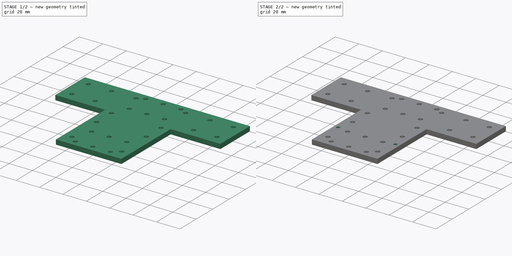
[diagram: build sequence overview — one tinted view per stage of 2, left to right]
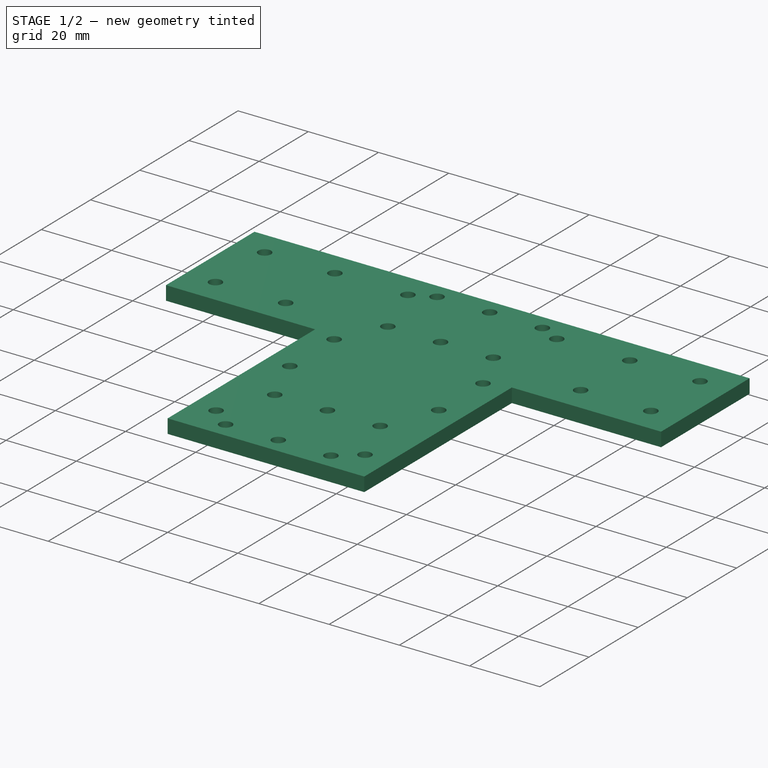
[diagram: stage 1 of 2 — iso view after this stage's code; geometry added in this stage tinted green]
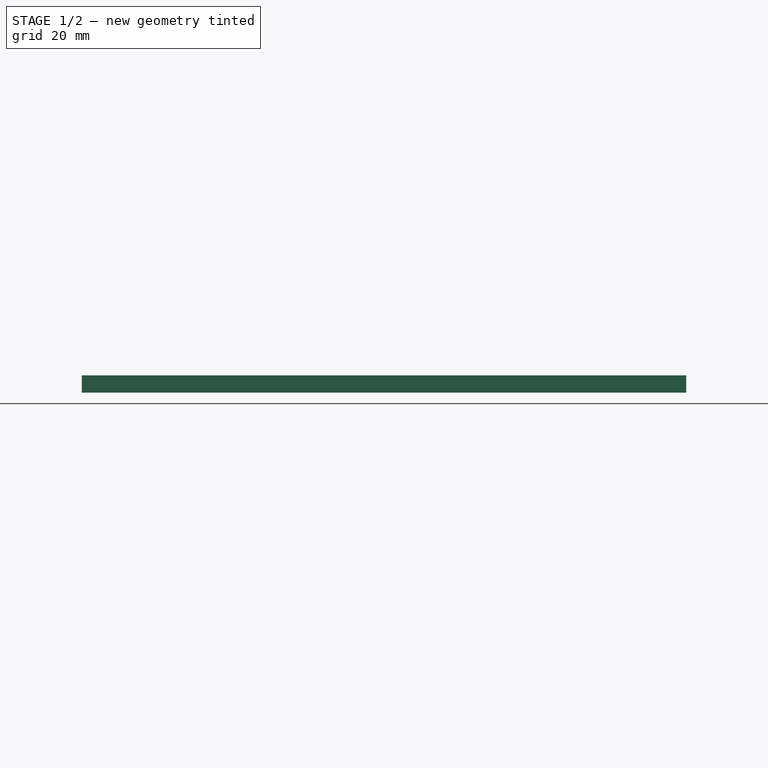
[diagram: stage 1 of 2 — front view after this stage's code; geometry added in this stage tinted green]
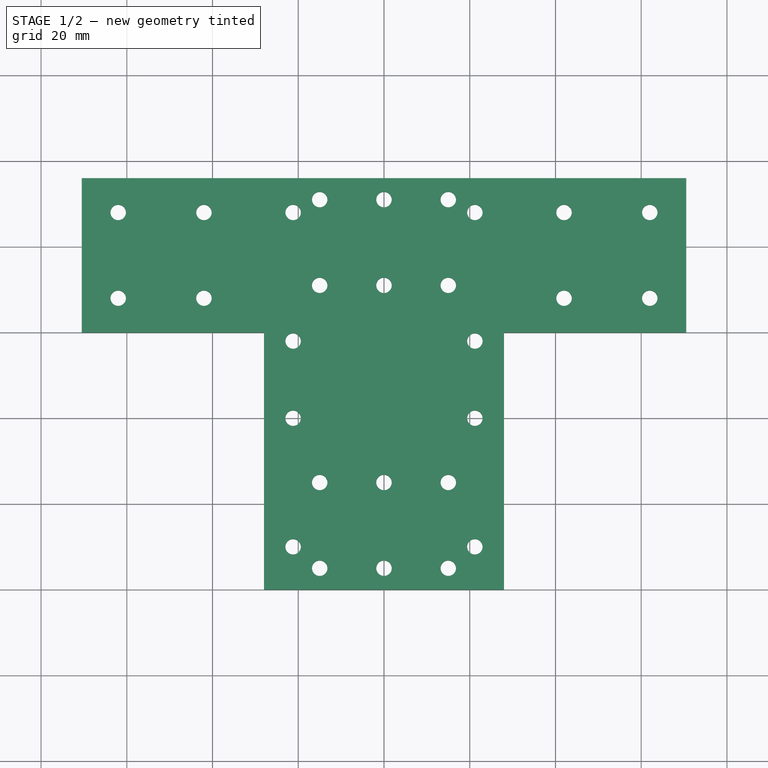
[diagram: stage 1 of 2 — top view after this stage's code; geometry added in this stage tinted green]
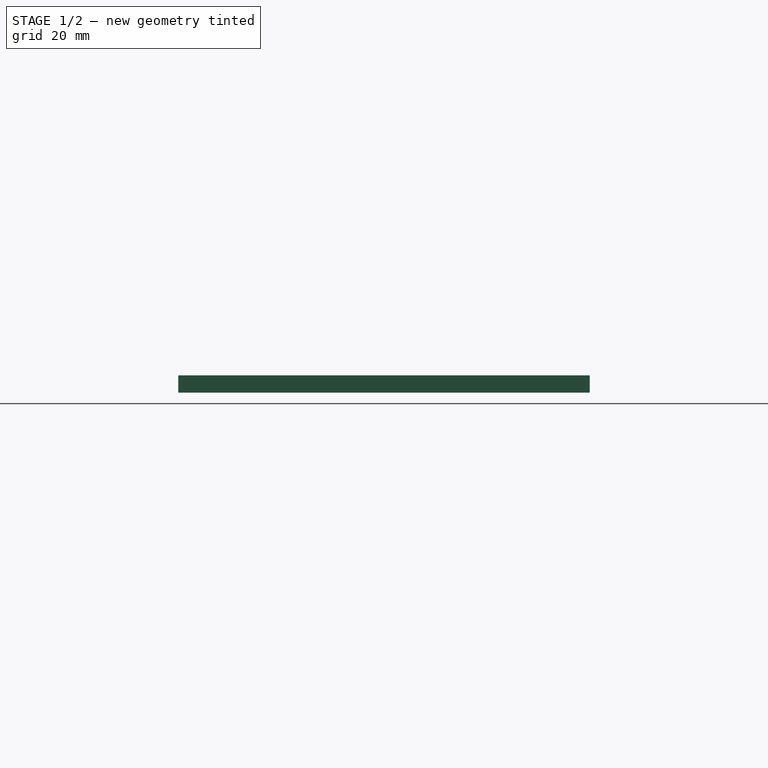
[diagram: stage 1 of 2 — right view after this stage's code; geometry added in this stage tinted green]
FCSTD DOCUMENT  (FreeCAD 0.21R33694 (Git))
Label: basePlate
License: All rights reserved
LicenseURL: http://en.wikipedia.org/wiki/All_rights_reserved
objects: Part::Feature×8, Sketcher::SketchObject×3, PartDesign::Pocket×2, App::Part×2, PartDesign::Pad×1, PartDesign::Body×1
note: 18 computed .brp shape members not serialized (recipe doc carries the construction recipe); baked Part::Feature solids carry a one-line shape summary decoded from their .brp

FEATURE [Sketcher::SketchObject] Sketch
  FullyConstrained = true
  MapMode = 5
  Support = -> [XY_Plane]
  sketch-geometry (8):
    g0: LineSegment StartX=-70.5 StartY=0 StartZ=0 EndX=-70.5 EndY=36 EndZ=0
    g1: LineSegment StartX=-70.5 StartY=36 StartZ=0 EndX=70.5 EndY=36 EndZ=0
    g2: LineSegment StartX=70.5 StartY=36 StartZ=0 EndX=70.5 EndY=0 EndZ=0
    g3: LineSegment StartX=70.5 StartY=0 StartZ=0 EndX=28 EndY=0 EndZ=0
    g4: LineSegment StartX=28 StartY=0 StartZ=0 EndX=28 EndY=-60 EndZ=0
    g5: LineSegment StartX=28 StartY=-60 StartZ=0 EndX=-28 EndY=-60 EndZ=0
    g6: LineSegment StartX=-28 StartY=-60 StartZ=0 EndX=-28 EndY=0 EndZ=0
    g7: LineSegment StartX=-28 StartY=0 StartZ=0 EndX=-70.5 EndY=0 EndZ=0
  constraints (24):
    c: PointOnObject(g0,g-1)
    c: Coincident(g1,g0)
    c: Coincident(g2,g1)
    c: Coincident(g3,g2)
    c: Horizontal(g3)
    c: Coincident(g4,g3)
    c: Vertical(g4)
    c: Coincident(g5,g4)
    c: Horizontal(g5)
    c: Coincident(g6,g5)
    c: Vertical(g6)
    c: Coincident(g7,g6)
    c: Coincident(g7,g0)
    c: Vertical(g0)
    c: Vertical(g2)
    c: Horizontal(g1)
    c: Horizontal(g7)
    c: DistanceX(g-1,g3) = 28
    c: DistanceX(g6,g-1) = 28
    c: DistanceY(g3,g-1) = 0
    c: DistanceX(g3,g2) = 42.5
    c: DistanceX(g0,g6) = 42.5
    c: DistanceY(g2,g1) = 36
    c: DistanceY(g4,g-1) = 60
FEATURE [PartDesign::Pad] Pad
  Direction = (0,0,1)
  Length = 4
  Length2 = 10
  Profile = -> Sketch
  ReferenceAxis = -> Sketch [N_Axis]
  Type = 0
FEATURE [Sketcher::SketchObject] Sketch001
  FullyConstrained = true
  MapMode = 5
  Placement = pos=(0,0,4) rot=(0,0,1;0rad)
  Support = -> [Pad]
  sketch-geometry (28):
    g0: Circle CenterX=-62 CenterY=28 CenterZ=0 NormalX=0 NormalY=0 NormalZ=1 AngleXU=0 Radius=1.8
    g1: Circle CenterX=-42 CenterY=28 CenterZ=0 NormalX=0 NormalY=0 NormalZ=1 AngleXU=0 Radius=1.8
    g2: Circle CenterX=-62 CenterY=8 CenterZ=0 NormalX=0 NormalY=0 NormalZ=1 AngleXU=0 Radius=1.8
    g3: Circle CenterX=-42 CenterY=8 CenterZ=0 NormalX=0 NormalY=0 NormalZ=1 AngleXU=0 Radius=1.8
    g4: Circle CenterX=42 CenterY=28 CenterZ=0 NormalX=0 NormalY=0 NormalZ=1 AngleXU=0 Radius=1.8
    g5: Circle CenterX=42 CenterY=8 CenterZ=0 NormalX=0 NormalY=0 NormalZ=1 AngleXU=0 Radius=1.8
    g6: Circle CenterX=62 CenterY=28 CenterZ=0 NormalX=0 NormalY=0 NormalZ=1 AngleXU=0 Radius=1.8
    g7: Circle CenterX=62 CenterY=8 CenterZ=0 NormalX=0 NormalY=0 NormalZ=1 AngleXU=0 Radius=1.8
    g8: Circle CenterX=-15 CenterY=-55 CenterZ=0 NormalX=0 NormalY=0 NormalZ=1 AngleXU=0 Radius=1.8
    g9: Circle CenterX=0 CenterY=-55 CenterZ=0 NormalX=0 NormalY=0 NormalZ=1 AngleXU=0 Radius=1.8
    g10: Circle CenterX=15 CenterY=-55 CenterZ=0 NormalX=0 NormalY=0 NormalZ=1 AngleXU=0 Radius=1.8
    g11: Circle CenterX=-15 CenterY=-35 CenterZ=0 NormalX=0 NormalY=0 NormalZ=1 AngleXU=0 Radius=1.8
    g12: Circle CenterX=0 CenterY=-35 CenterZ=0 NormalX=0 NormalY=0 NormalZ=1 AngleXU=0 Radius=1.8
    g13: Circle CenterX=15 CenterY=-35 CenterZ=0 NormalX=0 NormalY=0 NormalZ=1 AngleXU=0 Radius=1.8
    g14: Circle CenterX=21.2 CenterY=28 CenterZ=0 NormalX=0 NormalY=0 NormalZ=1 AngleXU=0 Radius=1.8
    g15: Circle CenterX=-21.2 CenterY=28 CenterZ=0 NormalX=0 NormalY=0 NormalZ=1 AngleXU=0 Radius=1.8
    g16: Circle CenterX=-21.2 CenterY=-20 CenterZ=0 NormalX=0 NormalY=0 NormalZ=1 AngleXU=0 Radius=1.8
    g17: Circle CenterX=21.2 CenterY=-20 CenterZ=0 NormalX=0 NormalY=0 NormalZ=1 AngleXU=0 Radius=1.8
    g18: Circle CenterX=-15 CenterY=31 CenterZ=0 NormalX=0 NormalY=0 NormalZ=1 AngleXU=0 Radius=1.8
    g19: Circle CenterX=0 CenterY=31 CenterZ=0 NormalX=0 NormalY=0 NormalZ=1 AngleXU=0 Radius=1.8
    g20: Circle CenterX=15 CenterY=31 CenterZ=0 NormalX=0 NormalY=0 NormalZ=1 AngleXU=0 Radius=1.8
    g21: Circle CenterX=0 CenterY=11 CenterZ=0 NormalX=0 NormalY=0 NormalZ=1 AngleXU=0 Radius=1.8
    g22: Circle CenterX=15 CenterY=11 CenterZ=0 NormalX=0 NormalY=0 NormalZ=1 AngleXU=0 Radius=1.8
    g23: Circle CenterX=-15 CenterY=11 CenterZ=0 NormalX=0 NormalY=0 NormalZ=1 AngleXU=0 Radius=1.8
    g24: Circle CenterX=21.2 CenterY=-2 CenterZ=0 NormalX=0 NormalY=0 NormalZ=1 AngleXU=0 Radius=1.8
    g25: Circle CenterX=-21.2 CenterY=-2 CenterZ=0 NormalX=0 NormalY=0 NormalZ=1 AngleXU=0 Radius=1.8
    g26: Circle CenterX=-21.2 CenterY=-50 CenterZ=0 NormalX=0 NormalY=0 NormalZ=1 AngleXU=0 Radius=1.8
    g27: Circle CenterX=21.2 CenterY=-50 CenterZ=0 NormalX=0 NormalY=0 NormalZ=1 AngleXU=0 Radius=1.8
  constraints (84):
    c: Radius(g0) = 1.8
    c: Radius(g1) = 1.8
    c: Radius(g2) = 1.8
    c: Radius(g3) = 1.8
    c: Radius(g4) = 1.8
    c: Radius(g5) = 1.8
    c: Radius(g7) = 1.8
    c: Radius(g6) = 1.8
    c: Radius(g11) = 1.8
    c: Radius(g12) = 1.8
    c: Radius(g13) = 1.8
    c: Radius(g8) = 1.8
    c: Radius(g9) = 1.8
    c: Radius(g10) = 1.8
    c: DistanceY(g0,g1) = 0
    c: DistanceY(g4,g6) = 0
    c: DistanceY(g7,g5) = 0
    c: DistanceY(g2,g3) = 0
    c: DistanceY(g11,g12) = 0
    c: DistanceY(g12,g13) = 0
    c: DistanceY(g8,g9) = 0
    c: DistanceY(g9,g10) = 0
    c: DistanceX(g10,g13) = 0
    c: DistanceX(g5,g4) = 0
    c: DistanceX(g7,g6) = 0
    c: DistanceX(g12,g9) = 0
    c: DistanceX(g8,g11) = 0
    c: DistanceX(g1,g3) = 0
    c: DistanceX(g0,g2) = 0
    c: DistanceX(g0,g1) = 20
    c: DistanceX(g4,g6) = 20
    c: DistanceY(g2,g0) = 20
    c: DistanceY(g12,g-1) = 35
    c: DistanceY(g9,g12) = 20
    c: DistanceX(g-1,g13) = 15
    c: DistanceX(g11,g-1) = 15
    c: DistanceX(g12,g-1) = 0
    c: DistanceX(g-1,g5) = 42
    c: DistanceX(g3,g-1) = 42
    c: DistanceY(g-1,g3) = 8
    c: DistanceY(g-1,g5) = 8
    c: DistanceY(g1,g4) = 0
    c: Radius(g15) = 1.8
    c: Radius(g16) = 1.8
    c: Radius(g17) = 1.8
    c: DistanceX(g15,g16) = 0
    c: DistanceX(g17,g14) = 0
    c: DistanceY(g14,g15) = 0
    c: DistanceY(g16,g17) = 0
    c: Radius(g14) = 1.8
    c: DistanceX(g-1,g17) = 21.2
    c: DistanceX(g16,g-1) = 21.2
    c: DistanceY(g-1,g14) = 28
    c: PointOnObject(g19,g-2)
    c: PointOnObject(g21,g-2)
    c: DistanceX(g20,g22) = 0
    c: DistanceX(g23,g18) = 0
    c: Radius(g20) = 1.8
    c: Radius(g22) = 1.8
    c: Radius(g21) = 1.8
    c: Radius(g19) = 1.8
    c: Radius(g18) = 1.8
    c: Radius(g23) = 1.8
    c: DistanceY(g19,g20) = 0
    c: DistanceY(g18,g19) = 0
    c: DistanceY(g21,g22) = 0
    c: DistanceY(g23,g21) = 0
    c: DistanceX(g19,g20) = 15
    c: DistanceX(g18,g19) = 15
    c: DistanceY(g21,g19) = 20
    c: DistanceY(g-1,g19) = 31
    c: DistanceY(g16,g15) = 48
    c: Radius(g24) = 1.8
    c: Radius(g25) = 1.8
    c: Radius(g26) = 1.8
    c: Radius(g27) = 1.8
    c: DistanceX(g24,g17) = 0
    c: DistanceX(g27,g24) = 0
    c: DistanceX(g26,g25) = 0
    c: DistanceX(g25,g16) = 0
    c: DistanceY(g25,g24) = 0
    c: DistanceY(g26,g27) = 0
    c: DistanceY(g26,g25) = 48
    c: DistanceY(g26,g-1) = 50
FEATURE [PartDesign::Pocket] Pocket
  BaseFeature = -> Pad
  Direction = (0,0,-1)
  Length = 5
  Length2 = 5
  Profile = -> Sketch001
  ReferenceAxis = -> Sketch001 [N_Axis]
  Type = 0
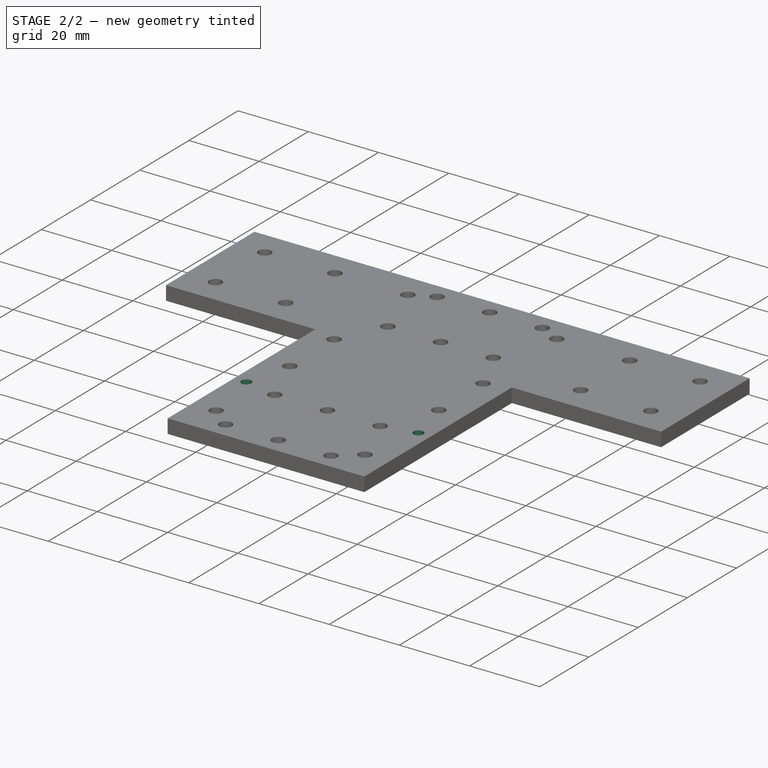
[diagram: stage 2 of 2 — iso view after this stage's code; geometry added in this stage tinted green]
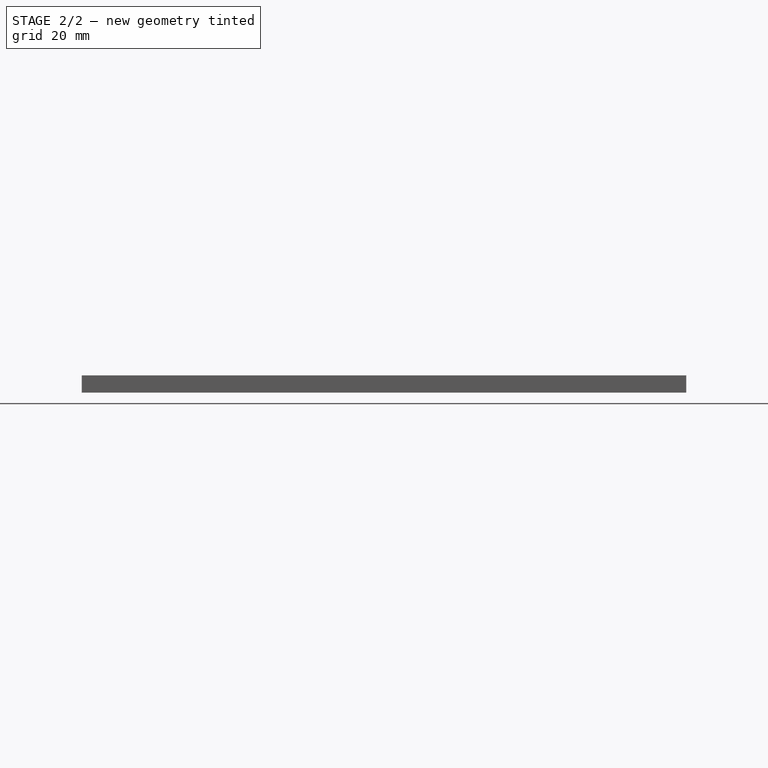
[diagram: stage 2 of 2 — front view after this stage's code; geometry added in this stage tinted green]
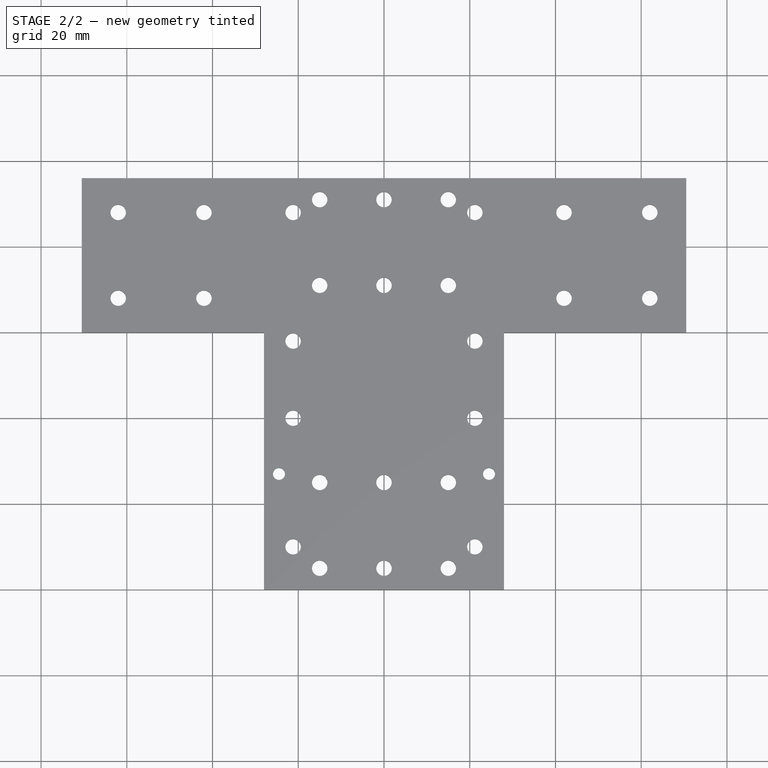
[diagram: stage 2 of 2 — top view after this stage's code; geometry added in this stage tinted green]
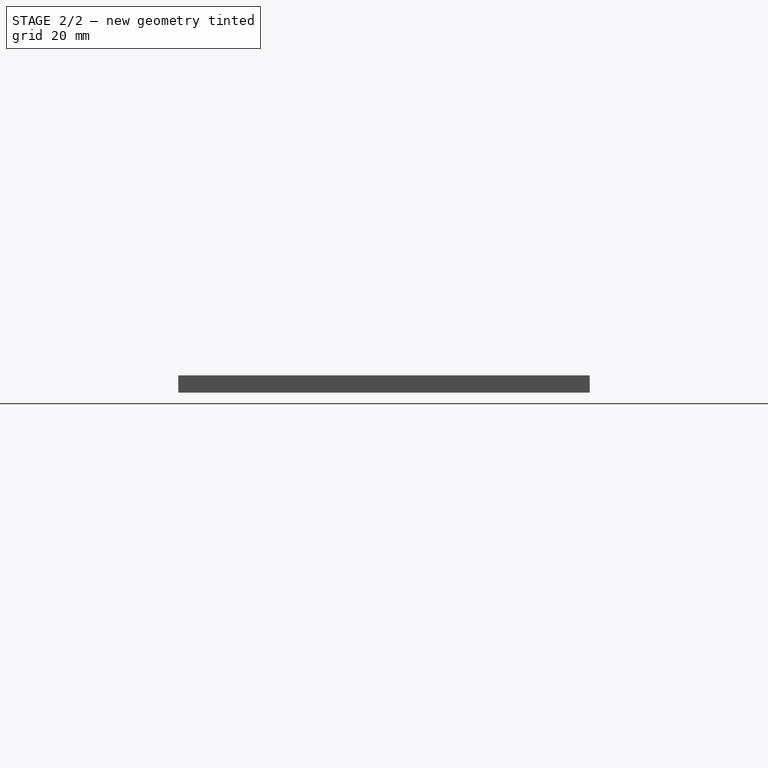
[diagram: stage 2 of 2 — right view after this stage's code; geometry added in this stage tinted green]
FEATURE [Part::Feature] Part__Feature  label="JST-B4B-EH-A.PRT.1"
  Placement = pos=(169.49,68.4835,-5.01893) rot=(0.57735,-0.57735,-0.57735;2.0944rad)
  shape: bbox 3.8 x 12.5 x 9.2 mm, 68 faces (baked)
FEATURE [Part::Feature] Part__Feature001  label="JST-B4B-EH-A.PRT.002"
  Placement = pos=(175.49,68.4835,-5.01893) rot=(0.57735,-0.57735,-0.57735;2.0944rad)
  shape: bbox 3.8 x 12.5 x 9.2 mm, 68 faces (baked)
FEATURE [Part::Feature] Part__Feature002  label="JST-B3B-EH-A.PRT.1"
  Placement = pos=(169.49,80.4335,-5.01893) rot=(0.57735,-0.57735,-0.57735;2.0944rad)
  shape: bbox 3.8 x 10 x 9.2 mm, 58 faces (baked)
FEATURE [Part::Feature] Part__Feature003  label="JST-B3B-EH-A.PRT.002"
  Placement = pos=(175.49,80.4335,-5.01893) rot=(0.57735,-0.57735,-0.57735;2.0944rad)
  shape: bbox 3.8 x 10 x 9.2 mm, 58 faces (baked)
FEATURE [Part::Feature] Part__Feature004  label="JST-B4B-EH-A.PRT.003"
  Placement = pos=(181.39,68.4835,-5.01893) rot=(0.57735,-0.57735,-0.57735;2.0944rad)
  shape: bbox 3.8 x 12.5 x 9.2 mm, 68 faces (baked)
FEATURE [Part::Feature] Part__Feature005  label="Board"
  shape: bbox 62.03 x 48 x 18.87 mm, 83 faces (baked)
FEATURE [Part::Feature] Part__Feature006  label="JST-B3B-EH-A.PRT.003"
  Placement = pos=(181.39,80.4335,-5.01893) rot=(0.57735,-0.57735,-0.57735;2.0944rad)
  shape: bbox 3.8 x 10 x 9.2 mm, 58 faces (baked)
FEATURE [Part::Feature] Part__Feature007  label="39281023.prt"
  Placement = pos=(-0.4,0,0) rot=(0,0,1;0rad)
  shape: bbox 6.2 x 16.3 x 11 mm, 77 faces (baked)
FEATURE [App::Part] _9281023_stp  label="39281023.stp"
  Group = -> [Part__Feature007]
  Origin = -> Origin001
  Placement = pos=(181.1,102.95,-5.21893) rot=(1,0,0;1.5708rad)
FEATURE [App::Part] ROBOTIS_U2D2_Power_Hub_Board
  Group = -> [Part__Feature,Part__Feature001,Part__Feature002,Part__Feature003,Part__Feature004,Part__Feature005,Part__Feature006,_9281023_stp]
  Origin = -> Origin002
  Placement = pos=(-85.5,186.75,18.5) rot=(0,0,1;4.71239rad)
FEATURE [Sketcher::SketchObject] Sketch002
  FullyConstrained = true
  MapMode = 5
  Placement = pos=(0,0,4) rot=(0,0,1;0rad)
  Support = -> [Pocket]
  sketch-geometry (2):
    g0: Circle CenterX=-24.5 CenterY=-33 CenterZ=0 NormalX=0 NormalY=0 NormalZ=1 AngleXU=0 Radius=1.4
    g1: Circle CenterX=24.5 CenterY=-33 CenterZ=0 NormalX=0 NormalY=0 NormalZ=1 AngleXU=0 Radius=1.4
  constraints (6):
    c: Radius(g0) = 1.4
    c: Radius(g1) = 1.4
    c: DistanceY(g0,g1) = 0
    c: DistanceY(g0,g-1) = 33
    c: DistanceX(g0,g-1) = 24.5
    c: DistanceX(g-1,g1) = 24.5
FEATURE [PartDesign::Pocket] Pocket001
  BaseFeature = -> Pocket
  Direction = (0,0,-1)
  Length = 5
  Length2 = 5
  Profile = -> Sketch002
  ReferenceAxis = -> Sketch002 [N_Axis]
  Type = 0
FEATURE [PartDesign::Body] Body
  Group = -> [Sketch,Pad,Sketch001,Pocket,Sketch002,Pocket001]
  Origin = -> Origin
  Tip = -> Pocket001
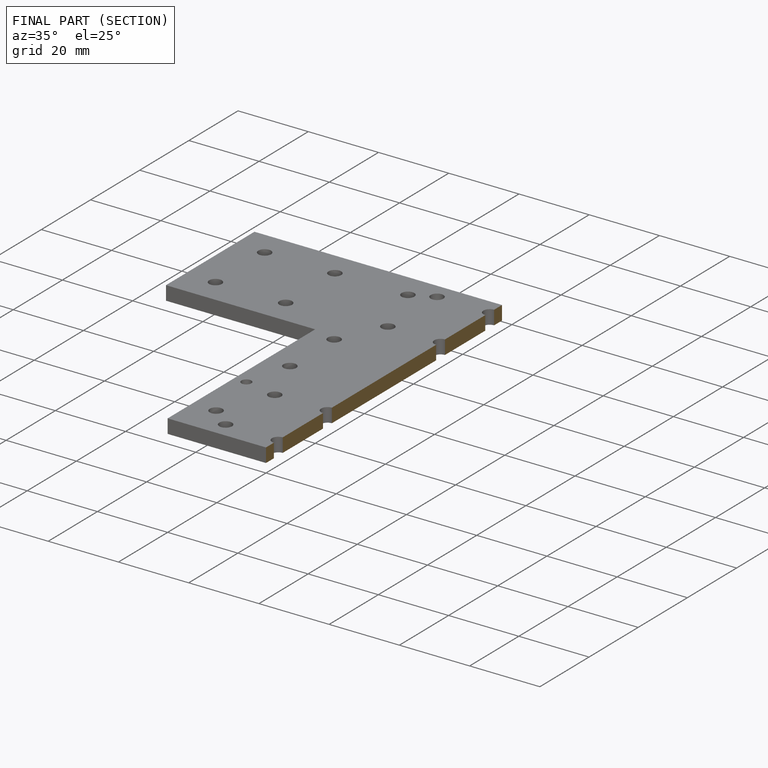
[diagram: finished part — half-section view (interior)]
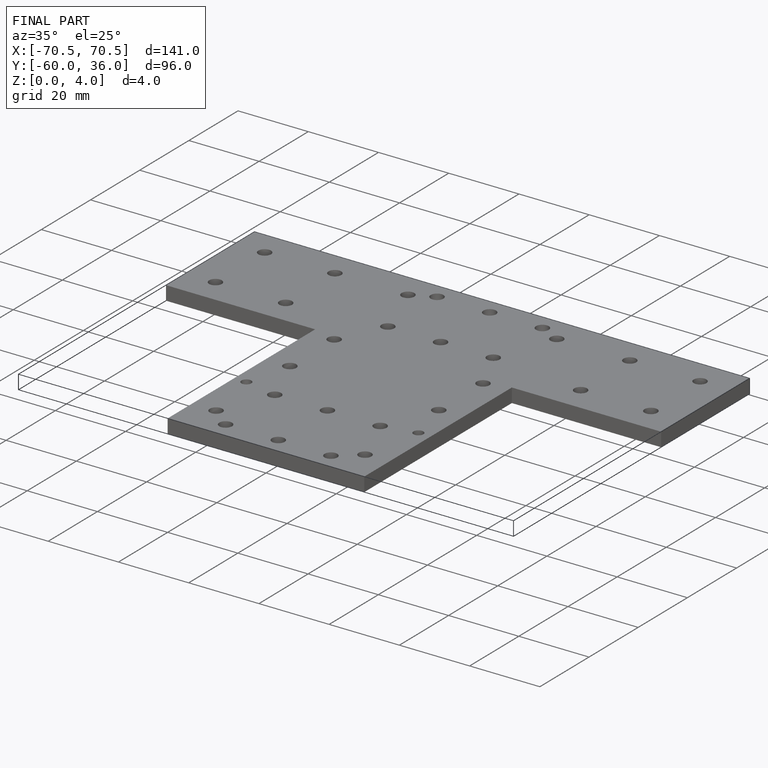
[diagram: finished part — iso view with bounding-box wireframe]
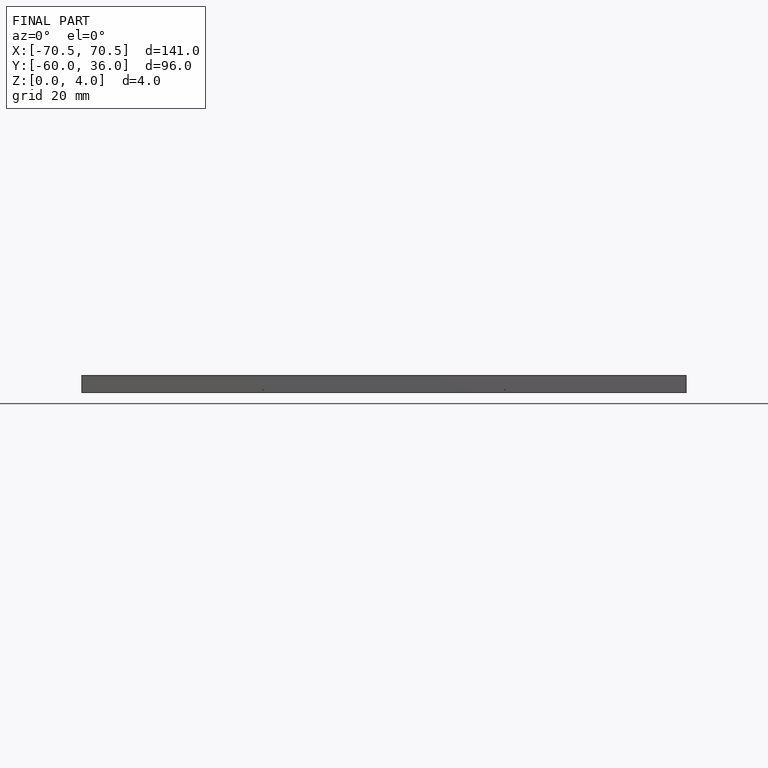
[diagram: finished part — front view with bounding-box wireframe]
